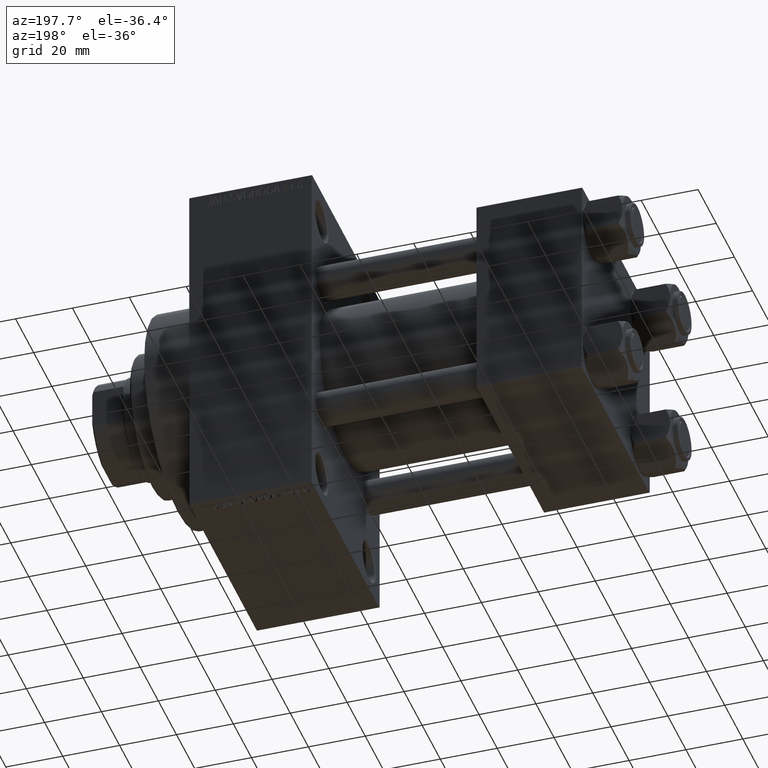
[diagram: clean part render]
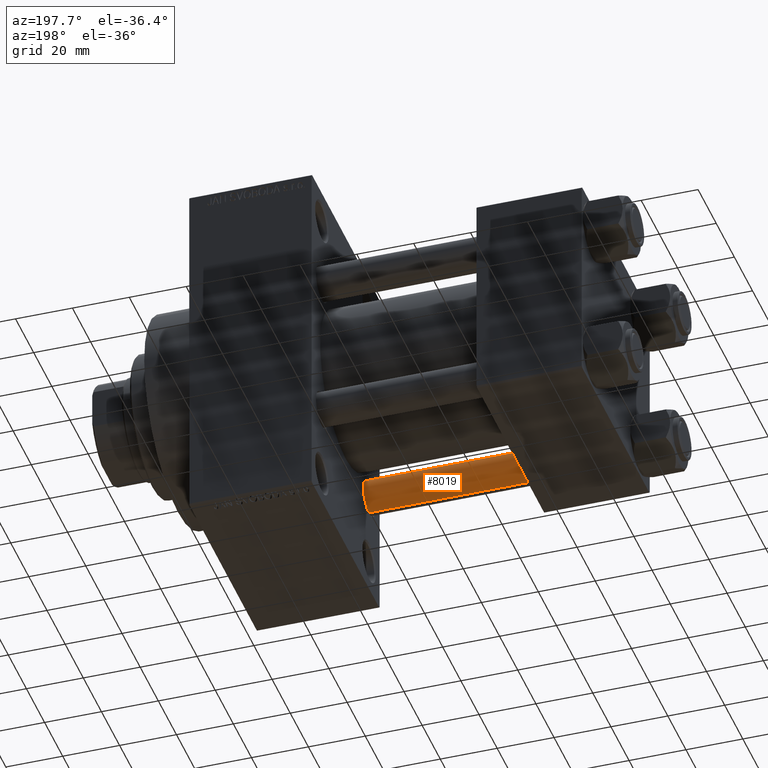
[diagram: same view with one face highlighted and labeled with its STEP entity id]
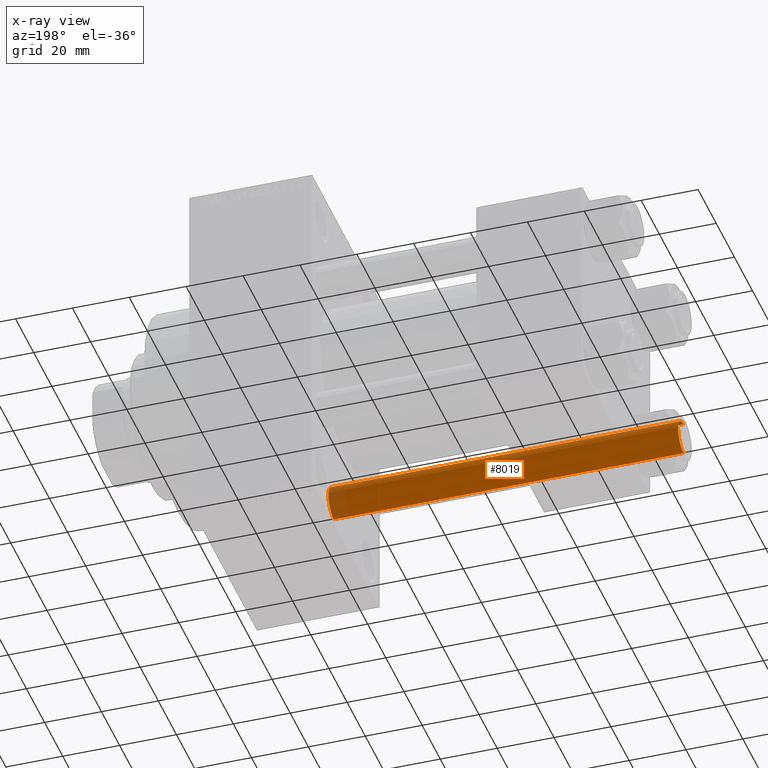
[diagram: x-ray of the same camera — body ghosted, the highlighted face saturated]
A machine part, auxiliary view. The second image highlights one B-rep face of the part: STEP entity #8019.
The next image is the same camera in x-ray: the body ghosted, the highlighted face saturated — about 5% of this face is hidden behind the body in this view.
In plain terms, the highlighted cylindrical surface (edge-blend (fillet) strip) has radius 6 mm, axis along (1, 0, 0).
Its self-contained STEP definition (entity closure, byte-faithful):
#986 = CARTESIAN_POINT ( 'NONE',  ( -6.000000000000000888, 0.000000000000000000, 123.5000000000000426 ) ) ;
#2089 = LINE ( 'NONE', #9485, #35897 ) ;
#2672 = AXIS2_PLACEMENT_3D ( 'NONE', #13465, #2957, #28041 ) ;
#2957 = DIRECTION ( 'NONE',  ( 0.000000000000000000, 0.000000000000000000, -1.000000000000000000 ) ) ;
#3338 = DIRECTION ( 'NONE',  ( -0.000000000000000000, -0.000000000000000000, -1.000000000000000000 ) ) ;
#3823 = AXIS2_PLACEMENT_3D ( 'NONE', #6595, #34783, #9463 ) ;
#6349 = VECTOR ( 'NONE', #43460, 1000.000000000000000 ) ;
#6595 = CARTESIAN_POINT ( 'NONE',  ( 0.000000000000000000, 0.000000000000000000, 0.4999999999999865663 ) ) ;
#8019 = ADVANCED_FACE ( 'NONE', ( #28648 ), #36049, .T. ) ;
#9463 = DIRECTION ( 'NONE',  ( 1.000000000000000000, 0.000000000000000000, 0.000000000000000000 ) ) ;
#9485 = CARTESIAN_POINT ( 'NONE',  ( 6.000000000000000888, 7.347880794884120722E-16, 124.0000000000000000 ) ) ;
#11381 = EDGE_LOOP ( 'NONE', ( #46876, #42952, #14345, #32066 ) ) ;
#11630 = VERTEX_POINT ( 'NONE', #38118 ) ;
#12895 = EDGE_CURVE ( 'NONE', #11630, #40859, #30158, .T. ) ;
#13465 = CARTESIAN_POINT ( 'NONE',  ( 0.000000000000000000, 0.000000000000000000, 123.5000000000000426 ) ) ;
#13828 = CARTESIAN_POINT ( 'NONE',  ( 0.000000000000000000, 0.000000000000000000, 124.0000000000000000 ) ) ;
#14345 = ORIENTED_EDGE ( 'NONE', *, *, #35384, .T. ) ;
#16631 = DIRECTION ( 'NONE',  ( -0.000000000000000000, -0.000000000000000000, -1.000000000000000000 ) ) ;
#24406 = CIRCLE ( 'NONE', #3823, 6.000000000000000888 ) ;
#24432 = VERTEX_POINT ( 'NONE', #36967 ) ;
#24603 = EDGE_CURVE ( 'NONE', #28415, #24432, #24406, .T. ) ;
#28041 = DIRECTION ( 'NONE',  ( 1.000000000000000000, 0.000000000000000000, 0.000000000000000000 ) ) ;
#28415 = VERTEX_POINT ( 'NONE', #30449 ) ;
#28648 = FACE_OUTER_BOUND ( 'NONE', #11381, .T. ) ;
#28907 = LINE ( 'NONE', #39899, #6349 ) ;
#29207 = EDGE_CURVE ( 'NONE', #11630, #24432, #2089, .T. ) ;
#30158 = CIRCLE ( 'NONE', #2672, 6.000000000000000888 ) ;
#30449 = CARTESIAN_POINT ( 'NONE',  ( -6.000000000000000888, 0.000000000000000000, 0.4999999999999865663 ) ) ;
#32066 = ORIENTED_EDGE ( 'NONE', *, *, #24603, .T. ) ;
#34783 = DIRECTION ( 'NONE',  ( -0.000000000000000000, -0.000000000000000000, 1.000000000000000000 ) ) ;
#35384 = EDGE_CURVE ( 'NONE', #40859, #28415, #28907, .T. ) ;
#35809 = DIRECTION ( 'NONE',  ( -1.000000000000000000, 0.000000000000000000, 0.000000000000000000 ) ) ;
#35897 = VECTOR ( 'NONE', #16631, 1000.000000000000000 ) ;
#36049 = CYLINDRICAL_SURFACE ( 'NONE', #39139, 6.000000000000000888 ) ;
#36967 = CARTESIAN_POINT ( 'NONE',  ( 6.000000000000000888, 7.347880794884120722E-16, 0.4999999999999865663 ) ) ;
#38118 = CARTESIAN_POINT ( 'NONE',  ( 6.000000000000000888, 7.347880794884120722E-16, 123.5000000000000426 ) ) ;
#39139 = AXIS2_PLACEMENT_3D ( 'NONE', #13828, #3338, #35809 ) ;
#39899 = CARTESIAN_POINT ( 'NONE',  ( -6.000000000000000888, 0.000000000000000000, 124.0000000000000000 ) ) ;
#40859 = VERTEX_POINT ( 'NONE', #986 ) ;
#42952 = ORIENTED_EDGE ( 'NONE', *, *, #12895, .T. ) ;
#43460 = DIRECTION ( 'NONE',  ( -0.000000000000000000, -0.000000000000000000, -1.000000000000000000 ) ) ;
#46876 = ORIENTED_EDGE ( 'NONE', *, *, #29207, .F. ) ;